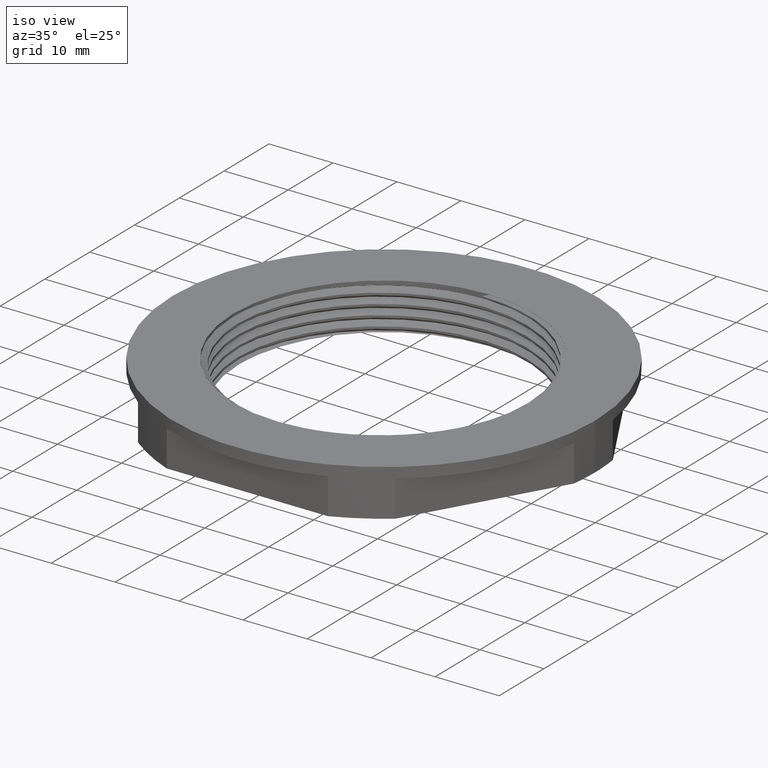
[diagram: clean part render]
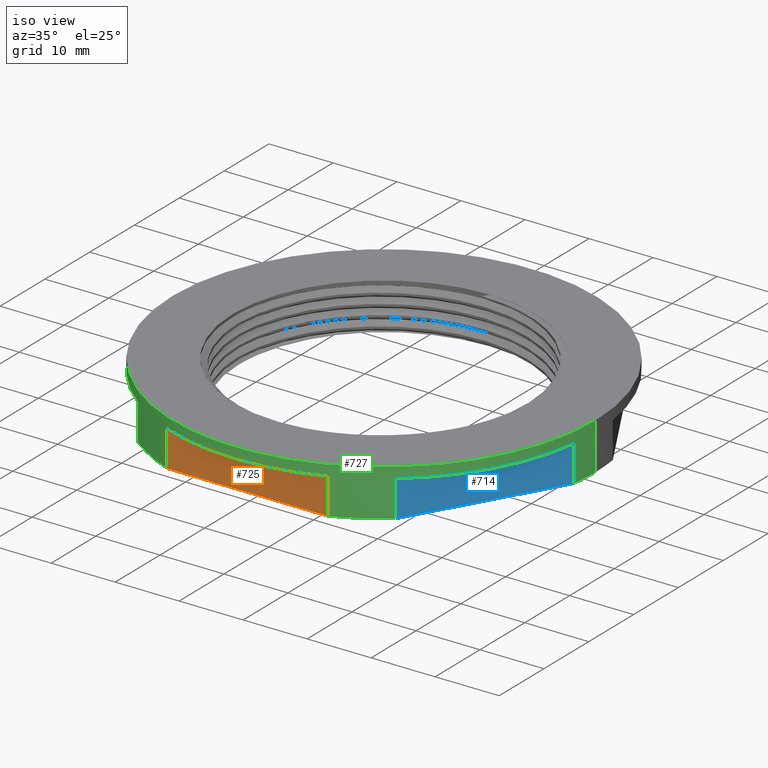
[diagram: same view with three faces highlighted in distinct colors, each labeled with its STEP entity id]
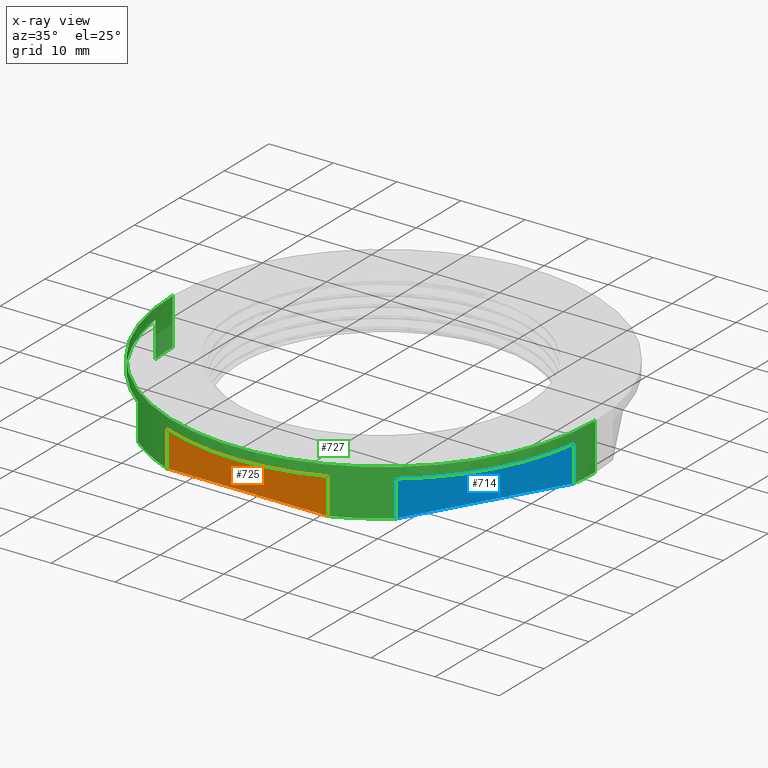
[diagram: x-ray of the same camera — body ghosted, the three highlighted faces saturated]
A machine part, iso view with three faces highlighted in distinct colors.
The next image is the same camera in x-ray (body ghosted, the three faces saturated) — at least one of them is partly hidden behind the body in this view.
Their STEP definitions:

[orange] entity #725 — the highlighted planar face has unit normal (0, 1, -0).
#63 = EDGE_LOOP ( 'NONE', ( #205, #221, #244, #251 ) ) ;
#205 = ORIENTED_EDGE ( 'NONE', *, *, #644, .F. ) ;
#221 = ORIENTED_EDGE ( 'NONE', *, *, #700, .T. ) ;
#244 = ORIENTED_EDGE ( 'NONE', *, *, #684, .F. ) ;
#251 = ORIENTED_EDGE ( 'NONE', *, *, #667, .F. ) ;
#265 = VERTEX_POINT ( 'NONE', #350 ) ;
#304 = VERTEX_POINT ( 'NONE', #363 ) ;
#307 = VERTEX_POINT ( 'NONE', #365 ) ;
#311 = VERTEX_POINT ( 'NONE', #375 ) ;
#350 = CARTESIAN_POINT ( 'NONE',  ( -12.59960316835410900, -30.50000000000002100, -0.09999999999999939500 ) ) ;
#363 = CARTESIAN_POINT ( 'NONE',  ( 12.59960316835410200, -30.50000000000002100, 5.549999999999998900 ) ) ;
#365 = CARTESIAN_POINT ( 'NONE',  ( -12.59960316835410900, -30.50000000000002100, 5.549999999999998900 ) ) ;
#375 = CARTESIAN_POINT ( 'NONE',  ( 12.59960316835410200, -30.50000000000002100, -0.09999999999999939500 ) ) ;
#644 = EDGE_CURVE ( 'NONE', #265, #307, #1814, .T. ) ;
#667 = EDGE_CURVE ( 'NONE', #307, #304, #1120, .T. ) ;
#684 = EDGE_CURVE ( 'NONE', #304, #311, #1232, .T. ) ;
#700 = EDGE_CURVE ( 'NONE', #265, #311, #1323, .T. ) ;
#725 = ADVANCED_FACE ( 'NONE', ( #1584 ), #1661, .F. ) ;
#940 = VECTOR ( 'NONE', #1123, 1000.000000000000000 ) ;
#955 = VECTOR ( 'NONE', #1234, 1000.000000000000000 ) ;
#1005 = VECTOR ( 'NONE', #1351, 1000.000000000000000 ) ;
#1012 = VECTOR ( 'NONE', #1848, 1000.000000000000000 ) ;
#1114 = CARTESIAN_POINT ( 'NONE',  ( -17.32050807568878200, -30.50000000000001800, 5.549999999999998900 ) ) ;
#1120 = LINE ( 'NONE', #1114, #940 ) ;
#1123 = DIRECTION ( 'NONE',  ( 1.000000000000000000, -1.001543065824772700E-016, 0.0000000000000000000 ) ) ;
#1232 = LINE ( 'NONE', #1233, #955 ) ;
#1233 = CARTESIAN_POINT ( 'NONE',  ( 12.59960316835410200, -30.50000000000002100, -22.00000000000001800 ) ) ;
#1234 = DIRECTION ( 'NONE',  ( -0.0000000000000000000, -0.0000000000000000000, -1.000000000000000000 ) ) ;
#1323 = LINE ( 'NONE', #1340, #1005 ) ;
#1340 = CARTESIAN_POINT ( 'NONE',  ( -17.32050807568878200, -30.50000000000001800, -0.1000000000000002600 ) ) ;
#1351 = DIRECTION ( 'NONE',  ( 1.000000000000000000, -1.001543065824772700E-016, 0.0000000000000000000 ) ) ;
#1584 = FACE_OUTER_BOUND ( 'NONE', #63, .T. ) ;
#1645 = CARTESIAN_POINT ( 'NONE',  ( -17.32050807568878200, -30.50000000000001800, 7.200000000000001100 ) ) ;
#1661 = PLANE ( 'NONE',  #1880 ) ;
#1673 = DIRECTION ( 'NONE',  ( 1.001543065824772700E-016, 1.000000000000000000, -0.0000000000000000000 ) ) ;
#1683 = DIRECTION ( 'NONE',  ( -1.000000000000000000, 1.001543065824772700E-016, 0.0000000000000000000 ) ) ;
#1814 = LINE ( 'NONE', #1819, #1012 ) ;
#1819 = CARTESIAN_POINT ( 'NONE',  ( -12.59960316835410900, -30.50000000000002100, -22.00000000000001800 ) ) ;
#1848 = DIRECTION ( 'NONE',  ( 0.0000000000000000000, 0.0000000000000000000, 1.000000000000000000 ) ) ;
#1880 = AXIS2_PLACEMENT_3D ( 'NONE', #1645, #1673, #1683 ) ;

[blue] entity #714 — the highlighted planar face has unit normal (-0.866, 0.5, 0).
#4 = EDGE_LOOP ( 'NONE', ( #219, #250, #198, #207 ) ) ;
#198 = ORIENTED_EDGE ( 'NONE', *, *, #643, .F. ) ;
#207 = ORIENTED_EDGE ( 'NONE', *, *, #692, .F. ) ;
#219 = ORIENTED_EDGE ( 'NONE', *, *, #659, .F. ) ;
#250 = ORIENTED_EDGE ( 'NONE', *, *, #660, .T. ) ;
#292 = VERTEX_POINT ( 'NONE', #367 ) ;
#303 = VERTEX_POINT ( 'NONE', #353 ) ;
#310 = VERTEX_POINT ( 'NONE', #374 ) ;
#314 = VERTEX_POINT ( 'NONE', #381 ) ;
#353 = CARTESIAN_POINT ( 'NONE',  ( 32.71357639960245900, -4.338423578602403000, 5.549999999999998900 ) ) ;
#367 = CARTESIAN_POINT ( 'NONE',  ( 20.11397323124832300, -26.16157642139758400, 5.549999999999998900 ) ) ;
#374 = CARTESIAN_POINT ( 'NONE',  ( 20.11397323124832300, -26.16157642139758400, -0.09999999999999939500 ) ) ;
#381 = CARTESIAN_POINT ( 'NONE',  ( 32.71357639960245900, -4.338423578602403000, -0.09999999999999939500 ) ) ;
#643 = EDGE_CURVE ( 'NONE', #303, #314, #1806, .T. ) ;
#659 = EDGE_CURVE ( 'NONE', #310, #292, #1959, .T. ) ;
#660 = EDGE_CURVE ( 'NONE', #310, #314, #1975, .T. ) ;
#692 = EDGE_CURVE ( 'NONE', #292, #303, #1268, .T. ) ;
#714 = ADVANCED_FACE ( 'NONE', ( #1408 ), #1535, .F. ) ;
#920 = VECTOR ( 'NONE', #1965, 1000.000000000000000 ) ;
#921 = VECTOR ( 'NONE', #1946, 1000.000000000000000 ) ;
#1013 = VECTOR ( 'NONE', #1852, 1000.000000000000000 ) ;
#1021 = VECTOR ( 'NONE', #1276, 1000.000000000000000 ) ;
#1268 = LINE ( 'NONE', #1275, #1021 ) ;
#1275 = CARTESIAN_POINT ( 'NONE',  ( 17.75352077758099500, -30.25000000000002100, 5.549999999999998900 ) ) ;
#1276 = DIRECTION ( 'NONE',  ( 0.4999999999999996700, 0.8660254037844388200, 0.0000000000000000000 ) ) ;
#1408 = FACE_OUTER_BOUND ( 'NONE', #4, .T. ) ;
#1535 = PLANE ( 'NONE',  #1858 ) ;
#1559 = CARTESIAN_POINT ( 'NONE',  ( 17.75352077758099500, -30.25000000000002100, 7.200000000000001100 ) ) ;
#1560 = DIRECTION ( 'NONE',  ( -0.8660254037844388200, 0.4999999999999996700, 0.0000000000000000000 ) ) ;
#1562 = DIRECTION ( 'NONE',  ( -0.4999999999999996700, -0.8660254037844388200, 0.0000000000000000000 ) ) ;
#1806 = LINE ( 'NONE', #1831, #1013 ) ;
#1831 = CARTESIAN_POINT ( 'NONE',  ( 32.71357639960245900, -4.338423578602403000, -22.00000000000001800 ) ) ;
#1852 = DIRECTION ( 'NONE',  ( -0.0000000000000000000, -0.0000000000000000000, -1.000000000000000000 ) ) ;
#1858 = AXIS2_PLACEMENT_3D ( 'NONE', #1559, #1560, #1562 ) ;
#1946 = DIRECTION ( 'NONE',  ( 0.4999999999999996700, 0.8660254037844388200, 0.0000000000000000000 ) ) ;
#1959 = LINE ( 'NONE', #1963, #920 ) ;
#1963 = CARTESIAN_POINT ( 'NONE',  ( 20.11397323124832300, -26.16157642139758400, -22.00000000000001800 ) ) ;
#1965 = DIRECTION ( 'NONE',  ( 0.0000000000000000000, 0.0000000000000000000, 1.000000000000000000 ) ) ;
#1972 = CARTESIAN_POINT ( 'NONE',  ( 17.75352077758099500, -30.25000000000002100, -0.1000000000000002600 ) ) ;
#1975 = LINE ( 'NONE', #1972, #921 ) ;

[green] entity #727 — the highlighted cylindrical surface (partial cylindrical patch) has radius 33 mm, axis along (0, 0, 1).
#34 = ORIENTED_EDGE ( 'NONE', *, *, #659, .T. ) ;
#35 = ORIENTED_EDGE ( 'NONE', *, *, #684, .T. ) ;
#45 = ORIENTED_EDGE ( 'NONE', *, *, #663, .T. ) ;
#46 = ORIENTED_EDGE ( 'NONE', *, *, #678, .T. ) ;
#49 = ORIENTED_EDGE ( 'NONE', *, *, #682, .T. ) ;
#58 = EDGE_LOOP ( 'NONE', ( #248, #218, #225, #227, #260, #255, #256, #45, #35, #49, #34, #97, #59, #46, #70, #115 ) ) ;
#59 = ORIENTED_EDGE ( 'NONE', *, *, #643, .T. ) ;
#70 = ORIENTED_EDGE ( 'NONE', *, *, #596, .T. ) ;
#97 = ORIENTED_EDGE ( 'NONE', *, *, #655, .T. ) ;
#115 = ORIENTED_EDGE ( 'NONE', *, *, #699, .F. ) ;
#218 = ORIENTED_EDGE ( 'NONE', *, *, #652, .T. ) ;
#225 = ORIENTED_EDGE ( 'NONE', *, *, #691, .T. ) ;
#227 = ORIENTED_EDGE ( 'NONE', *, *, #646, .T. ) ;
#248 = ORIENTED_EDGE ( 'NONE', *, *, #619, .F. ) ;
#255 = ORIENTED_EDGE ( 'NONE', *, *, #622, .T. ) ;
#256 = ORIENTED_EDGE ( 'NONE', *, *, #644, .T. ) ;
#260 = ORIENTED_EDGE ( 'NONE', *, *, #668, .T. ) ;
#265 = VERTEX_POINT ( 'NONE', #350 ) ;
#268 = VERTEX_POINT ( 'NONE', #324 ) ;
#269 = VERTEX_POINT ( 'NONE', #332 ) ;
#276 = VERTEX_POINT ( 'NONE', #335 ) ;
#282 = VERTEX_POINT ( 'NONE', #338 ) ;
#292 = VERTEX_POINT ( 'NONE', #367 ) ;
#294 = VERTEX_POINT ( 'NONE', #352 ) ;
#298 = VERTEX_POINT ( 'NONE', #371 ) ;
#300 = VERTEX_POINT ( 'NONE', #362 ) ;
#303 = VERTEX_POINT ( 'NONE', #353 ) ;
#304 = VERTEX_POINT ( 'NONE', #363 ) ;
#307 = VERTEX_POINT ( 'NONE', #365 ) ;
#310 = VERTEX_POINT ( 'NONE', #374 ) ;
#311 = VERTEX_POINT ( 'NONE', #375 ) ;
#314 = VERTEX_POINT ( 'NONE', #381 ) ;
#317 = VERTEX_POINT ( 'NONE', #380 ) ;
#324 = CARTESIAN_POINT ( 'NONE',  ( -20.11397323124834100, -26.16157642139756900, 5.549999999999998900 ) ) ;
#332 = CARTESIAN_POINT ( 'NONE',  ( 33.00000000000000000, 0.0000000000000000000, -0.09999999999999939500 ) ) ;
#335 = CARTESIAN_POINT ( 'NONE',  ( -32.71357639960245200, -4.338423578602457200, 5.549999999999998900 ) ) ;
#338 = CARTESIAN_POINT ( 'NONE',  ( -32.71357639960245200, -4.338423578602457200, -0.09999999999999939500 ) ) ;
#350 = CARTESIAN_POINT ( 'NONE',  ( -12.59960316835410900, -30.50000000000002100, -0.09999999999999939500 ) ) ;
#352 = CARTESIAN_POINT ( 'NONE',  ( -20.11397323124834100, -26.16157642139756900, -0.09999999999999939500 ) ) ;
#353 = CARTESIAN_POINT ( 'NONE',  ( 32.71357639960245900, -4.338423578602403000, 5.549999999999998900 ) ) ;
#362 = CARTESIAN_POINT ( 'NONE',  ( -33.00000000000000000, 4.041334437186266200E-015, 7.200000000000002000 ) ) ;
#363 = CARTESIAN_POINT ( 'NONE',  ( 12.59960316835410200, -30.50000000000002100, 5.549999999999998900 ) ) ;
#365 = CARTESIAN_POINT ( 'NONE',  ( -12.59960316835410900, -30.50000000000002100, 5.549999999999998900 ) ) ;
#367 = CARTESIAN_POINT ( 'NONE',  ( 20.11397323124832300, -26.16157642139758400, 5.549999999999998900 ) ) ;
#371 = CARTESIAN_POINT ( 'NONE',  ( -33.00000000000000000, 4.041334437186266200E-015, -0.09999999999999939500 ) ) ;
#374 = CARTESIAN_POINT ( 'NONE',  ( 20.11397323124832300, -26.16157642139758400, -0.09999999999999939500 ) ) ;
#375 = CARTESIAN_POINT ( 'NONE',  ( 12.59960316835410200, -30.50000000000002100, -0.09999999999999939500 ) ) ;
#380 = CARTESIAN_POINT ( 'NONE',  ( 33.00000000000000000, 0.0000000000000000000, 7.200000000000002000 ) ) ;
#381 = CARTESIAN_POINT ( 'NONE',  ( 32.71357639960245900, -4.338423578602403000, -0.09999999999999939500 ) ) ;
#400 = LINE ( 'NONE', #417, #967 ) ;
#417 = CARTESIAN_POINT ( 'NONE',  ( 33.00000000000000000, 0.0000000000000000000, -22.00000000000001800 ) ) ;
#418 = DIRECTION ( 'NONE',  ( 0.0000000000000000000, 0.0000000000000000000, 1.000000000000000000 ) ) ;
#522 = LINE ( 'NONE', #524, #994 ) ;
#524 = CARTESIAN_POINT ( 'NONE',  ( -33.00000000000000000, 4.041334437186266200E-015, -22.00000000000001800 ) ) ;
#538 = DIRECTION ( 'NONE',  ( 0.0000000000000000000, 0.0000000000000000000, 1.000000000000000000 ) ) ;
#544 = CARTESIAN_POINT ( 'NONE',  ( 0.0000000000000000000, 0.0000000000000000000, -0.09999999999999939500 ) ) ;
#548 = DIRECTION ( 'NONE',  ( 0.0000000000000000000, 0.0000000000000000000, 1.000000000000000000 ) ) ;
#555 = DIRECTION ( 'NONE',  ( 1.000000000000000000, 0.0000000000000000000, 0.0000000000000000000 ) ) ;
#596 = EDGE_CURVE ( 'NONE', #269, #317, #400, .T. ) ;
#619 = EDGE_CURVE ( 'NONE', #298, #300, #522, .T. ) ;
#622 = EDGE_CURVE ( 'NONE', #294, #265, #992, .T. ) ;
#643 = EDGE_CURVE ( 'NONE', #303, #314, #1806, .T. ) ;
#644 = EDGE_CURVE ( 'NONE', #265, #307, #1814, .T. ) ;
#646 = EDGE_CURVE ( 'NONE', #276, #268, #1019, .T. ) ;
#652 = EDGE_CURVE ( 'NONE', #298, #282, #915, .T. ) ;
#655 = EDGE_CURVE ( 'NONE', #292, #303, #911, .T. ) ;
#659 = EDGE_CURVE ( 'NONE', #310, #292, #1959, .T. ) ;
#663 = EDGE_CURVE ( 'NONE', #307, #304, #928, .T. ) ;
#668 = EDGE_CURVE ( 'NONE', #268, #294, #1111, .T. ) ;
#678 = EDGE_CURVE ( 'NONE', #314, #269, #945, .T. ) ;
#682 = EDGE_CURVE ( 'NONE', #311, #310, #950, .T. ) ;
#684 = EDGE_CURVE ( 'NONE', #304, #311, #1232, .T. ) ;
#691 = EDGE_CURVE ( 'NONE', #282, #276, #1263, .T. ) ;
#699 = EDGE_CURVE ( 'NONE', #300, #317, #960, .T. ) ;
#727 = ADVANCED_FACE ( 'NONE', ( #785 ), #752, .T. ) ;
#752 = CYLINDRICAL_SURFACE ( 'NONE', #1901, 33.00000000000000000 ) ;
#754 = DIRECTION ( 'NONE',  ( 0.0000000000000000000, 0.0000000000000000000, 1.000000000000000000 ) ) ;
#785 = FACE_OUTER_BOUND ( 'NONE', #58, .T. ) ;
#799 = DIRECTION ( 'NONE',  ( 1.000000000000000000, 0.0000000000000000000, 0.0000000000000000000 ) ) ;
#801 = CARTESIAN_POINT ( 'NONE',  ( 0.0000000000000000000, 0.0000000000000000000, -22.00000000000001800 ) ) ;
#911 = CIRCLE ( 'NONE', #912, 33.00000000000000000 ) ;
#912 = AXIS2_PLACEMENT_3D ( 'NONE', #1925, #1879, #1926 ) ;
#915 = CIRCLE ( 'NONE', #916, 33.00000000000000000 ) ;
#916 = AXIS2_PLACEMENT_3D ( 'NONE', #1883, #1875, #1872 ) ;
#920 = VECTOR ( 'NONE', #1965, 1000.000000000000000 ) ;
#928 = CIRCLE ( 'NONE', #934, 33.00000000000000000 ) ;
#934 = AXIS2_PLACEMENT_3D ( 'NONE', #1116, #1117, #1119 ) ;
#937 = VECTOR ( 'NONE', #1132, 1000.000000000000000 ) ;
#945 = CIRCLE ( 'NONE', #946, 33.00000000000000000 ) ;
#946 = AXIS2_PLACEMENT_3D ( 'NONE', #1200, #1210, #1208 ) ;
#950 = CIRCLE ( 'NONE', #953, 33.00000000000000000 ) ;
#953 = AXIS2_PLACEMENT_3D ( 'NONE', #1224, #1227, #1223 ) ;
#955 = VECTOR ( 'NONE', #1234, 1000.000000000000000 ) ;
#960 = CIRCLE ( 'NONE', #963, 33.00000000000000000 ) ;
#963 = AXIS2_PLACEMENT_3D ( 'NONE', #1390, #1344, #1380 ) ;
#967 = VECTOR ( 'NONE', #418, 1000.000000000000000 ) ;
#992 = CIRCLE ( 'NONE', #993, 33.00000000000000000 ) ;
#993 = AXIS2_PLACEMENT_3D ( 'NONE', #544, #538, #555 ) ;
#994 = VECTOR ( 'NONE', #548, 1000.000000000000000 ) ;
#1009 = VECTOR ( 'NONE', #1273, 1000.000000000000000 ) ;
#1012 = VECTOR ( 'NONE', #1848, 1000.000000000000000 ) ;
#1013 = VECTOR ( 'NONE', #1852, 1000.000000000000000 ) ;
#1019 = CIRCLE ( 'NONE', #1020, 33.00000000000000000 ) ;
#1020 = AXIS2_PLACEMENT_3D ( 'NONE', #1817, #1820, #1854 ) ;
#1108 = CARTESIAN_POINT ( 'NONE',  ( -20.11397323124834100, -26.16157642139756900, -22.00000000000001800 ) ) ;
#1111 = LINE ( 'NONE', #1108, #937 ) ;
#1116 = CARTESIAN_POINT ( 'NONE',  ( 0.0000000000000000000, 0.0000000000000000000, 5.549999999999998900 ) ) ;
#1117 = DIRECTION ( 'NONE',  ( 0.0000000000000000000, 0.0000000000000000000, 1.000000000000000000 ) ) ;
#1119 = DIRECTION ( 'NONE',  ( 1.000000000000000000, 0.0000000000000000000, 0.0000000000000000000 ) ) ;
#1132 = DIRECTION ( 'NONE',  ( -0.0000000000000000000, -0.0000000000000000000, -1.000000000000000000 ) ) ;
#1200 = CARTESIAN_POINT ( 'NONE',  ( 0.0000000000000000000, 0.0000000000000000000, -0.09999999999999939500 ) ) ;
#1208 = DIRECTION ( 'NONE',  ( 1.000000000000000000, 0.0000000000000000000, 0.0000000000000000000 ) ) ;
#1210 = DIRECTION ( 'NONE',  ( 0.0000000000000000000, 0.0000000000000000000, 1.000000000000000000 ) ) ;
#1223 = DIRECTION ( 'NONE',  ( 1.000000000000000000, 0.0000000000000000000, 0.0000000000000000000 ) ) ;
#1224 = CARTESIAN_POINT ( 'NONE',  ( 0.0000000000000000000, 0.0000000000000000000, -0.09999999999999939500 ) ) ;
#1227 = DIRECTION ( 'NONE',  ( 0.0000000000000000000, 0.0000000000000000000, 1.000000000000000000 ) ) ;
#1232 = LINE ( 'NONE', #1233, #955 ) ;
#1233 = CARTESIAN_POINT ( 'NONE',  ( 12.59960316835410200, -30.50000000000002100, -22.00000000000001800 ) ) ;
#1234 = DIRECTION ( 'NONE',  ( -0.0000000000000000000, -0.0000000000000000000, -1.000000000000000000 ) ) ;
#1259 = CARTESIAN_POINT ( 'NONE',  ( -32.71357639960245200, -4.338423578602457200, -22.00000000000001800 ) ) ;
#1263 = LINE ( 'NONE', #1259, #1009 ) ;
#1273 = DIRECTION ( 'NONE',  ( 0.0000000000000000000, 0.0000000000000000000, 1.000000000000000000 ) ) ;
#1344 = DIRECTION ( 'NONE',  ( 0.0000000000000000000, 0.0000000000000000000, 1.000000000000000000 ) ) ;
#1380 = DIRECTION ( 'NONE',  ( 1.000000000000000000, 0.0000000000000000000, 0.0000000000000000000 ) ) ;
#1390 = CARTESIAN_POINT ( 'NONE',  ( 0.0000000000000000000, 0.0000000000000000000, 7.200000000000002000 ) ) ;
#1806 = LINE ( 'NONE', #1831, #1013 ) ;
#1814 = LINE ( 'NONE', #1819, #1012 ) ;
#1817 = CARTESIAN_POINT ( 'NONE',  ( 0.0000000000000000000, 0.0000000000000000000, 5.549999999999998900 ) ) ;
#1819 = CARTESIAN_POINT ( 'NONE',  ( -12.59960316835410900, -30.50000000000002100, -22.00000000000001800 ) ) ;
#1820 = DIRECTION ( 'NONE',  ( 0.0000000000000000000, 0.0000000000000000000, 1.000000000000000000 ) ) ;
#1831 = CARTESIAN_POINT ( 'NONE',  ( 32.71357639960245900, -4.338423578602403000, -22.00000000000001800 ) ) ;
#1848 = DIRECTION ( 'NONE',  ( 0.0000000000000000000, 0.0000000000000000000, 1.000000000000000000 ) ) ;
#1852 = DIRECTION ( 'NONE',  ( -0.0000000000000000000, -0.0000000000000000000, -1.000000000000000000 ) ) ;
#1854 = DIRECTION ( 'NONE',  ( 1.000000000000000000, 0.0000000000000000000, 0.0000000000000000000 ) ) ;
#1872 = DIRECTION ( 'NONE',  ( 1.000000000000000000, 0.0000000000000000000, 0.0000000000000000000 ) ) ;
#1875 = DIRECTION ( 'NONE',  ( 0.0000000000000000000, 0.0000000000000000000, 1.000000000000000000 ) ) ;
#1879 = DIRECTION ( 'NONE',  ( 0.0000000000000000000, 0.0000000000000000000, 1.000000000000000000 ) ) ;
#1883 = CARTESIAN_POINT ( 'NONE',  ( 0.0000000000000000000, 0.0000000000000000000, -0.09999999999999939500 ) ) ;
#1901 = AXIS2_PLACEMENT_3D ( 'NONE', #801, #754, #799 ) ;
#1925 = CARTESIAN_POINT ( 'NONE',  ( 0.0000000000000000000, 0.0000000000000000000, 5.549999999999998900 ) ) ;
#1926 = DIRECTION ( 'NONE',  ( 1.000000000000000000, 0.0000000000000000000, 0.0000000000000000000 ) ) ;
#1959 = LINE ( 'NONE', #1963, #920 ) ;
#1963 = CARTESIAN_POINT ( 'NONE',  ( 20.11397323124832300, -26.16157642139758400, -22.00000000000001800 ) ) ;
#1965 = DIRECTION ( 'NONE',  ( 0.0000000000000000000, 0.0000000000000000000, 1.000000000000000000 ) ) ;